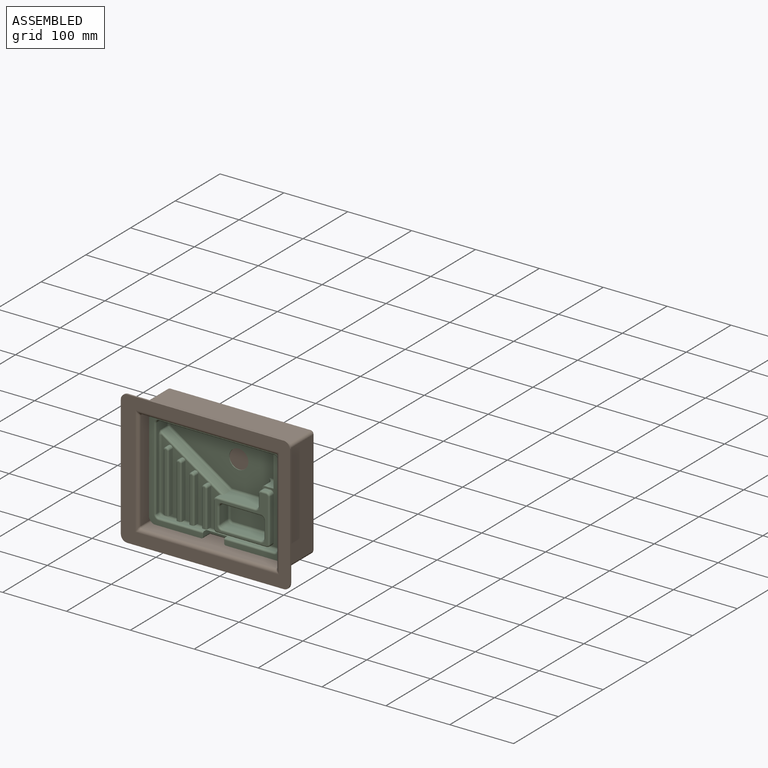
[diagram: assembled view]
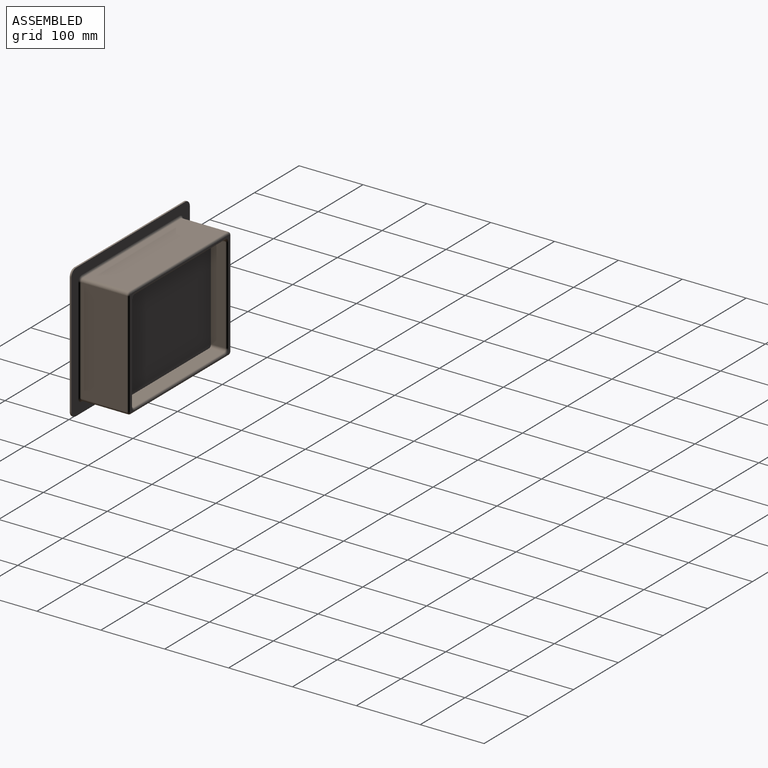
[diagram: assembled view, second angle]
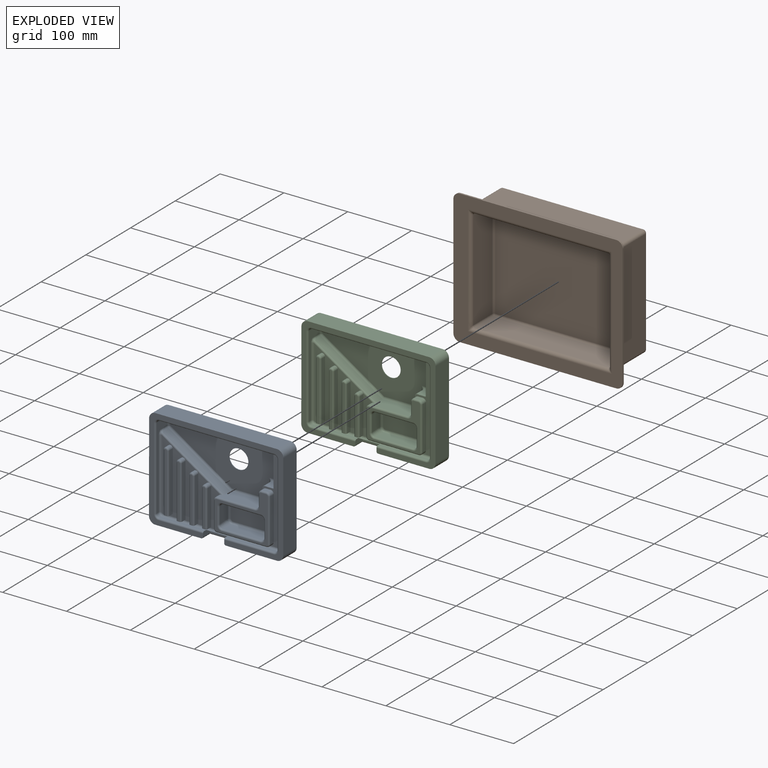
[diagram: exploded view]
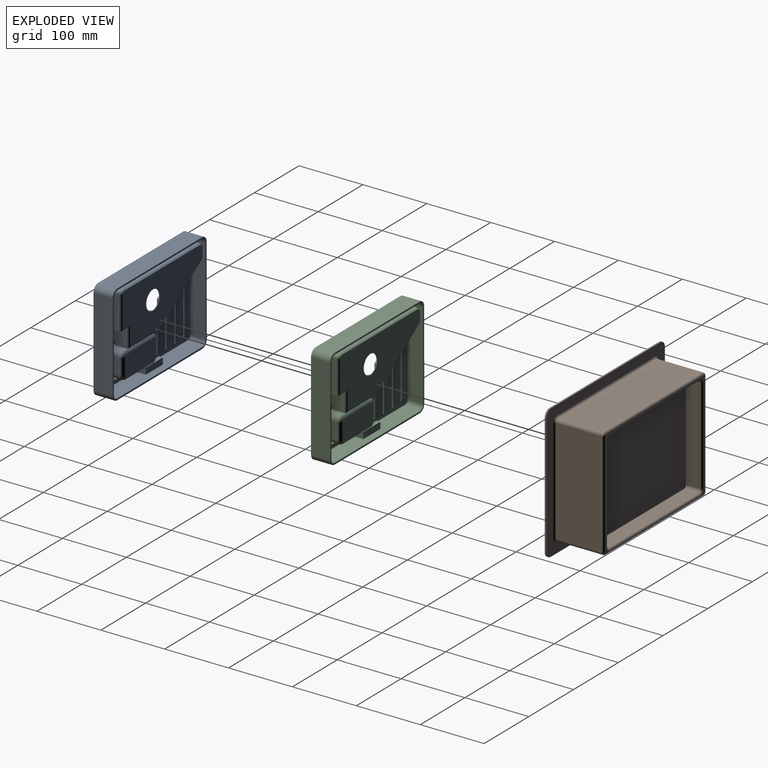
[diagram: exploded view, second angle]
ASSEMBLY  parts=3 mates=2
PART A: 250 faces, bbox 212.7x34x160.5 mm
  f0: plane 210.21x158mm, normal (0,1,0), area 1778mm2, adj f2,f58,f59,f60,f61,f62,f63,f64
  f1: plane 77.46x4.5mm, normal (0,0,1), area 348.6mm2, adj f4,f18,f136,f145
  f2: plane 190.21x30mm, normal (0,0,-1), area 4986.2mm2, adj f0,f3,f58,f64,f148,f149,f150
  f3: plane 210.21x158mm, normal (0,-1,0), area 5021.4mm2, adj f2,f4,f58,f59,f60,f61,f62,f63
  f4: cylinder r=2.5mm len=77.46mm, axis (-1,0,0), area 304.2mm2, adj f1,f3,f103,f145
  f5: plane 171.72x77.81mm, normal (0,-1,0), area 9085.8mm2, adj f122,f123,f124,f125,f126,f127,f128,f129
  f6: plane 82.45x72.77mm, normal (0,-1,0), area 1054.1mm2, adj f77,f78,f79,f80,f81,f82,f83,f84
  f7: cone r=5mm half-angle=3deg, axis (0,1,0), area 170.5mm2, adj f8,f14,f73,f80
  f8: plane 60.19x19.21mm, normal (0,0.05,1), area 1157.9mm2, adj f7,f9,f71,f82
  f9: cone r=5mm half-angle=3deg, axis (0,1,0), area 170.5mm2, adj f8,f10,f69,f84
  f10: plane 25.24x19.21mm, normal (-1,0.05,0), area 485.7mm2, adj f9,f11,f70,f83
  f11: cone r=5mm half-angle=3deg, axis (0,1,0), area 170.5mm2, adj f10,f12,f72,f81
  f12: plane 60.19x19.21mm, normal (0,0.05,-1), area 1157.9mm2, adj f11,f13,f74,f79
  f13: cone r=5mm half-angle=3deg, axis (0,1,0), area 170.5mm2, adj f12,f14,f76,f77
  f14: plane 25.24x19.21mm, normal (1,0.05,0), area 485.7mm2, adj f7,f13,f75,f78
  f15: plane 66.49x31.54mm, normal (0,-1,0), area 2088.6mm2, adj f69,f70,f71,f72,f73,f74,f75,f76
  f16: cylinder r=5mm len=5mm, axis (0,-1,0), area 35.3mm2, adj f17,f51,f99,f137
  f17: plane 69.33x4.5mm, normal (0,0,1), area 312mm2, adj f16,f101,f136,f146
  f18: cylinder r=5mm len=5mm, axis (0,-1,0), area 35.3mm2, adj f1,f19,f103,f135
  f19: plane 128x4.5mm, normal (-1,0,0), area 576mm2, adj f18,f20,f104,f134
  f20: cylinder r=5mm len=5mm, axis (0,-1,0), area 35.3mm2, adj f19,f21,f102,f133
  f21: plane 180.01x23.5mm, normal (0,0,-1), area 4034.8mm2, adj f20,f22,f100,f127,f131,f132
  f22: cylinder r=5mm len=23.5mm, axis (0,-1,0), area 184.6mm2, adj f21,f51,f98,f129
  f23: cylinder r=4mm len=8mm, axis (0,-1,0), area 94.2mm2, adj f24,f46,f52,f106
  f24: plane 92.55x7.5mm, normal (1,0,0), area 694.1mm2, adj f23,f25,f52,f105
  f25: plane 10x8mm, normal (0,0,-1), area 77.3mm2, adj f24,f46,f52,f56,f105,f107
  f26: cylinder r=4mm len=8mm, axis (0,-1,0), area 94.2mm2, adj f27,f47,f52,f109
  f27: plane 82.87x7.5mm, normal (1,0,0), area 621.5mm2, adj f26,f28,f52,f108
  f28: plane 10x8mm, normal (0,0,-1), area 77.3mm2, adj f27,f47,f52,f55,f108,f110
  f29: cylinder r=4mm len=8mm, axis (0,-1,0), area 94.2mm2, adj f30,f48,f52,f112,f120
  f30: plane 70.11x7.5mm, normal (1,0,0), area 525.8mm2, adj f29,f31,f52,f111
  f31: plane 10x8mm, normal (0,0,-1), area 77.3mm2, adj f30,f48,f52,f54,f111,f113
  f32: cylinder r=4mm len=8mm, axis (0,-1,0), area 94.2mm2, adj f33,f49,f52,f115,f118
  f33: plane 57.98x7.5mm, normal (1,0,0), area 434.8mm2, adj f32,f34,f52,f114
  f34: plane 10x8mm, normal (0,0,-1), area 77.3mm2, adj f33,f49,f52,f53,f114,f116
  f35: cylinder r=5mm len=7.5mm, axis (0,-1,0), area 58.9mm2, adj f36,f50,f52,f93
  f36: plane 67.77x7.5mm, normal (1,0,0), area 508.2mm2, adj f35,f37,f52,f95
  f37: cylinder r=5mm len=7.5mm, axis (0,-1,0), area 58.9mm2, adj f36,f38,f52,f96
  f38: plane 77.45x7.5mm, normal (0,0,-1), area 580.8mm2, adj f37,f39,f52,f94
  f39: cylinder r=5mm len=7.5mm, axis (0,-1,0), area 58.9mm2, adj f38,f40,f52,f92
  f40: plane 40x7.5mm, normal (-1,0,0), area 300mm2, adj f39,f41,f52,f90
  f41: cylinder r=5mm len=7.66mm, axis (0,-1,0), area 59mm2, adj f40,f42,f52,f88,f117
  f42: plane 66.13x24.63mm, normal (0,0,1), area 1444.7mm2, adj f41,f43,f44,f65,f66,f86,f117,f122
  f43: cylinder r=5mm len=7.5mm, axis (0,-1,0), area 58.9mm2, adj f42,f44,f65,f85
  f44: plane 27.64x23.5mm, normal (-1,0,0), area 575.5mm2, adj f42,f43,f45,f52,f65,f87,f124,f142
  f45: cylinder r=5mm len=7.5mm, axis (0,-1,0), area 58.9mm2, adj f44,f50,f52,f89
  f46: plane 92.55x7.5mm, normal (-1,0,0), area 694.1mm2, adj f23,f25,f52,f107
  f47: plane 82.87x7.5mm, normal (-1,0,0), area 621.5mm2, adj f26,f28,f52,f110
  f48: plane 70.11x7.5mm, normal (-1,0,0), area 525.8mm2, adj f29,f31,f52,f113
  f49: plane 57.98x7.5mm, normal (-1,0,0), area 434.8mm2, adj f32,f34,f52,f116
  f50: plane 7.5x7.45mm, normal (0,0,1), area 55.8mm2, adj f35,f45,f52,f91
  f51: plane 128x23.5mm, normal (1,0,0), area 825.4mm2, adj f16,f22,f97,f125,f138,f139,f140
  f52: plane 184.01x132mm, normal (0,-1,0), area 6043.6mm2, adj f23,f24,f25,f26,f27,f28,f29,f30
  f53: plane 59.48x3mm, normal (0,-1,0), area 177.5mm2, adj f34,f114,f115,f116
  f54: plane 71.61x3mm, normal (0,-1,0), area 213.9mm2, adj f31,f111,f112,f113
  f55: plane 84.37x3mm, normal (0,-1,0), area 252.2mm2, adj f28,f108,f109,f110
  f56: plane 94.05x3mm, normal (0,-1,0), area 281.2mm2, adj f25,f105,f106,f107
  f57: plane 181.79x87.87mm, normal (0,1,0), area 10847.2mm2, adj f151,f152,f153,f154,f155,f156,f157,f158
  f58: cylinder r=10mm len=30mm, axis (0,-1,0), area 471.7mm2, adj f0,f2,f3,f59
  f59: plane 138x30mm, normal (-1,0,0), area 4140mm2, adj f0,f3,f58,f60
  f60: cylinder r=10mm len=30mm, axis (0,-1,0), area 470.8mm2, adj f0,f3,f59,f61
  f61: plane 190.01x30mm, normal (0,0,1), area 5700.4mm2, adj f0,f3,f60,f62
  f62: cylinder r=10mm len=30mm, axis (0,-1,0), area 471.2mm2, adj f0,f3,f61,f63
  f63: plane 138x30mm, normal (1,0,0), area 4140mm2, adj f0,f3,f62,f64
  f64: cylinder r=10mm len=30mm, axis (0,-1,0), area 471.2mm2, adj f0,f2,f3,f63
  f65: plane 5x5mm, normal (0,1,0), area 5.4mm2, adj f42,f43,f44
  f66: plane 97.22x63.58mm, normal (0.55,0,0.84), area 1568.5mm2, adj f42,f117,f118,f119,f120,f121,f123,f140
  f67: plane 16x14.13mm, normal (0,0,1), area 226mm2, adj f52,f68,f126,f142
  f68: plane 50.17x16mm, normal (-1,0,0), area 802.7mm2, adj f52,f67,f128,f131
  f69: torus R=3.15mm, axis (0,-1,0), area 39mm2, adj f9,f15,f70,f71
  f70: cylinder r=3mm len=25.24mm, axis (0,0,-1), area 122.9mm2, adj f10,f15,f69,f72
  f71: cylinder r=3mm len=60.19mm, axis (1,0,0), area 293.1mm2, adj f8,f15,f69,f73
  f72: torus R=3.15mm, axis (0,-1,0), area 39mm2, adj f11,f15,f70,f74
  f73: torus R=3.15mm, axis (0,-1,0), area 39mm2, adj f7,f15,f71,f75
  f74: cylinder r=3mm len=60.19mm, axis (1,0,0), area 293.1mm2, adj f12,f15,f72,f76
  f75: cylinder r=3mm len=25.24mm, axis (0,0,-1), area 122.9mm2, adj f14,f15,f73,f76
  f76: torus R=3.15mm, axis (0,-1,0), area 39mm2, adj f13,f15,f74,f75
  f77: torus R=7.63mm, axis (0,-1,0), area 38.3mm2, adj f6,f13,f78,f79
  f78: cylinder r=2.5mm len=25.24mm, axis (0,0,1), area 102.4mm2, adj f6,f14,f77,f80
  f79: cylinder r=2.5mm len=60.19mm, axis (-1,0,0), area 244.2mm2, adj f6,f12,f77,f81
  f80: torus R=7.63mm, axis (0,-1,0), area 38.3mm2, adj f6,f7,f78,f82
  f81: torus R=7.63mm, axis (0,-1,0), area 38.3mm2, adj f6,f11,f79,f83
  f82: cylinder r=2.5mm len=60.19mm, axis (-1,0,0), area 244.2mm2, adj f6,f8,f80,f84
  f83: cylinder r=2.5mm len=25.24mm, axis (0,0,1), area 102.4mm2, adj f6,f10,f81,f84
  f84: torus R=7.63mm, axis (0,-1,0), area 38.3mm2, adj f6,f9,f82,f83
  f85: torus R=7.5mm, axis (0,-1,0), area 36.4mm2, adj f6,f43,f86,f87
  f86: cylinder r=2.5mm len=60mm, axis (-1,0,0), area 235.6mm2, adj f6,f42,f85,f88
  f87: cylinder r=2.5mm len=17.77mm, axis (0,0,-1), area 69.8mm2, adj f6,f44,f85,f89
  f88: torus R=2.5mm, axis (0,-1,0), area 25.2mm2, adj f6,f41,f86,f90
  f89: torus R=2.5mm, axis (0,-1,0), area 25.2mm2, adj f6,f45,f87,f91
  f90: cylinder r=2.5mm len=40mm, axis (0,0,-1), area 157.1mm2, adj f6,f40,f88,f92
  f91: cylinder r=2.5mm len=7.45mm, axis (-1,0,0), area 29.2mm2, adj f6,f50,f89,f93
  f92: torus R=2.5mm, axis (0,-1,0), area 25.2mm2, adj f6,f39,f90,f94
  f93: torus R=2.5mm, axis (0,-1,0), area 25.2mm2, adj f6,f35,f91,f95
  f94: cylinder r=2.5mm len=77.45mm, axis (1,0,0), area 304.1mm2, adj f6,f38,f92,f96
  f95: cylinder r=2.5mm len=67.77mm, axis (0,0,1), area 266.1mm2, adj f6,f36,f93,f96
  f96: torus R=2.5mm, axis (0,-1,0), area 25.2mm2, adj f6,f37,f94,f95
  f97: cylinder r=2.5mm len=128mm, axis (0,0,1), area 502.7mm2, adj f3,f51,f98,f99
  f98: torus R=7.5mm, axis (0,-1,0), area 36.4mm2, adj f3,f22,f97,f100
  f99: torus R=7.5mm, axis (0,-1,0), area 36.4mm2, adj f3,f16,f97,f101
  f100: cylinder r=2.5mm len=180.01mm, axis (1,0,0), area 706.9mm2, adj f3,f21,f98,f102
  f101: cylinder r=2.5mm len=69.33mm, axis (-1,0,0), area 272.3mm2, adj f3,f17,f99,f146
  f102: torus R=7.5mm, axis (0,-1,0), area 36.4mm2, adj f3,f20,f100,f104
  f103: torus R=7.5mm, axis (0,-1,0), area 36.4mm2, adj f3,f4,f18,f104
  f104: cylinder r=2.5mm len=128mm, axis (0,0,-1), area 502.7mm2, adj f3,f19,f102,f103
  f105: cylinder r=2.5mm len=92.55mm, axis (0,0,1), area 363.5mm2, adj f24,f25,f56,f106
  f106: torus R=1.5mm, axis (0,-1,0), area 38.1mm2, adj f23,f56,f105,f107
  f107: cylinder r=2.5mm len=92.55mm, axis (0,0,-1), area 363.5mm2, adj f25,f46,f56,f106
  f108: cylinder r=2.5mm len=82.87mm, axis (0,0,1), area 325.4mm2, adj f27,f28,f55,f109
  f109: torus R=1.5mm, axis (0,-1,0), area 38.1mm2, adj f26,f55,f108,f110
  f110: cylinder r=2.5mm len=82.87mm, axis (0,0,-1), area 325.4mm2, adj f28,f47,f55,f109
  f111: cylinder r=2.5mm len=70.11mm, axis (0,0,1), area 275.3mm2, adj f30,f31,f54,f112
  f112: torus R=1.5mm, axis (0,-1,0), area 38.1mm2, adj f29,f54,f111,f113
  f113: cylinder r=2.5mm len=70.11mm, axis (0,0,-1), area 275.3mm2, adj f31,f48,f54,f112
  f114: cylinder r=2.5mm len=57.98mm, axis (0,0,1), area 227.7mm2, adj f33,f34,f53,f115
  f115: torus R=1.5mm, axis (0,-1,0), area 38.1mm2, adj f32,f53,f114,f116
  f116: cylinder r=2.5mm len=57.98mm, axis (0,0,-1), area 227.7mm2, adj f34,f49,f53,f115
  f117: cylinder r=2.5mm len=18.8mm, axis (-0.84,0,0.55), area 75.4mm2, adj f41,f42,f52,f66,f118
  f118: bspline ~5.43x4.75mm, area 16.3mm2, adj f32,f66,f117,f119
  f119: cylinder r=2.5mm len=18.53mm, axis (-0.84,0,0.55), area 80.5mm2, adj f52,f66,f118,f120
  f120: bspline ~3.03x2.76mm, area 3.4mm2, adj f29,f66,f119,f121
  f121: cylinder r=2.5mm len=59.19mm, axis (-0.84,0,0.55), area 264.2mm2, adj f52,f66,f120,f139
  f122: cylinder r=3mm len=62.02mm, axis (1,0,0), area 283.1mm2, adj f5,f42,f123,f124
  f123: cylinder r=3mm len=98.86mm, axis (0.84,0,-0.55), area 545.3mm2, adj f5,f66,f122,f141
  f124: cylinder r=3mm len=33.64mm, axis (0,0,-1), area 137.3mm2, adj f5,f44,f122,f143
  f125: cylinder r=3mm len=12.72mm, axis (0,0,1), area 59.9mm2, adj f5,f51,f129,f141
  f126: cylinder r=3mm len=20.13mm, axis (1,0,0), area 73.6mm2, adj f5,f67,f128,f143
  f127: cylinder r=3mm len=169.72mm, axis (1,0,0), area 799.8mm2, adj f5,f21,f129,f130
  f128: cylinder r=3mm len=50.17mm, axis (0,0,1), area 229.3mm2, adj f5,f68,f126,f130
  f129: torus R=2mm, axis (0,-1,0), area 28.9mm2, adj f5,f22,f125,f127
  f130: sphere r=3mm, area 9mm2, adj f127,f128,f131
  f131: cylinder r=3mm len=19mm, axis (0,-1,0), area 82.5mm2, adj f21,f68,f130,f132
  f132: cylinder r=3mm len=10.29mm, axis (-1,0,0), area 41.4mm2, adj f21,f52,f131,f133
  f133: torus R=2mm, axis (0,-1,0), area 28.9mm2, adj f20,f52,f132,f134
  f134: cylinder r=3mm len=128mm, axis (0,0,1), area 603.2mm2, adj f19,f52,f133,f135
  f135: torus R=2mm, axis (0,-1,0), area 28.9mm2, adj f18,f52,f134,f136
  f136: cylinder r=3mm len=180.01mm, axis (1,0,0), area 848.3mm2, adj f1,f17,f52,f135,f137,f144
  f137: torus R=2mm, axis (0,-1,0), area 28.9mm2, adj f16,f52,f136,f138
  f138: cylinder r=3mm len=108.71mm, axis (0,0,-1), area 512.3mm2, adj f51,f52,f137,f139
  f139: bspline ~6.57x5.5mm, area 25.9mm2, adj f51,f121,f138,f140
  f140: cylinder r=3mm len=13.5mm, axis (0,1,0), area 40.2mm2, adj f51,f66,f139,f141
  f141: sphere r=3mm, area 6.5mm2, adj f123,f125,f140
  f142: cylinder r=3mm len=16mm, axis (0,1,0), area 75.4mm2, adj f44,f52,f67,f143
  f143: bspline ~6x6mm, area 9.5mm2, adj f124,f126,f142
  f144: plane 33.22x9.34mm, normal (0,0,-1), area 310.3mm2, adj f136,f145,f146,f147
  f145: plane 16.34x7.5mm, normal (-1,0,0), area 121.2mm2, adj f1,f3,f4,f144,f147,f148
  f146: plane 16.34x7.5mm, normal (1,0,0), area 121.2mm2, adj f3,f17,f101,f144,f147,f150
  f147: plane 33.22x7.5mm, normal (0,-1,0), area 249.2mm2, adj f144,f145,f146,f149
  f148: cylinder r=2.5mm len=18.84mm, axis (0,-1,0), area 69.1mm2, adj f2,f3,f145,f149
  f149: cylinder r=2.5mm len=38.22mm, axis (1,0,0), area 140.3mm2, adj f2,f147,f148,f150
  f150: cylinder r=2.5mm len=18.84mm, axis (0,1,0), area 69.1mm2, adj f2,f3,f146,f149
  f151: cylinder r=15mm len=30mm, axis (0,1,0), area 94.2mm2, adj f5,f57
  f152: sphere r=5.5mm, area 39.3mm2, adj f57,f155,f156,f236
  f153: bspline ~4.55x2.65mm, area 3.3mm2, adj f57,f157,f158,f245
  f154: sphere r=5.5mm, area 21.1mm2, adj f57,f160,f161,f244
  f155: cylinder r=5.5mm len=169.72mm, axis (1,0,0), area 760.2mm2, adj f57,f152,f162,f181
  f156: cylinder r=5.5mm len=52.67mm, axis (0,0,1), area 232mm2, adj f57,f152,f157,f227
  f157: cylinder r=5.5mm len=18.51mm, axis (1,0,0), area 74.8mm2, adj f57,f153,f156,f226
  f158: cylinder r=5.5mm len=32.02mm, axis (0,0,-1), area 135.3mm2, adj f57,f153,f159,f204
  f159: cylinder r=5.5mm len=65.27mm, axis (1,0,0), area 287.3mm2, adj f57,f158,f160,f202
  f160: cylinder r=5.5mm len=98.78mm, axis (0.84,0,-0.55), area 522.5mm2, adj f57,f154,f159,f225
  f161: cylinder r=5.5mm len=12.72mm, axis (0,0,1), area 57mm2, adj f57,f154,f162,f211
  f162: torus R=2mm, axis (0,-1,0), area 48.6mm2, adj f57,f155,f161,f182
  f163: plane 74.96x4.5mm, normal (0,0,-1), area 337.3mm2, adj f165,f178,f241,f247
  f164: plane 190.21x27.5mm, normal (0,0,1), area 4606.2mm2, adj f0,f165,f217,f223,f247,f248,f249
  f165: plane 205.21x153mm, normal (0,1,0), area 3304.1mm2, adj f163,f164,f176,f177,f178,f179,f180,f181
  f166: plane 82.45x72.77mm, normal (0,1,0), area 1054.1mm2, adj f167,f168,f169,f170,f171,f172,f173,f174
  f167: cone r=7.5mm half-angle=3deg, axis (0,1,0), area 245.9mm2, adj f166,f168,f174,f232
  f168: plane 60.19x19.21mm, normal (0,-0.05,-1), area 1157.9mm2, adj f166,f167,f169,f230
  f169: cone r=7.5mm half-angle=3deg, axis (0,1,0), area 245.9mm2, adj f166,f168,f170,f228
  f170: plane 25.24x19.21mm, normal (1,-0.05,0), area 485.7mm2, adj f166,f169,f171,f229
  f171: cone r=7.5mm half-angle=3deg, axis (0,1,0), area 245.9mm2, adj f166,f170,f172,f231
  f172: plane 60.19x19.21mm, normal (0,-0.05,1), area 1157.9mm2, adj f166,f171,f173,f233
  f173: cone r=7.5mm half-angle=3deg, axis (0,1,0), area 245.9mm2, adj f166,f172,f174,f235
  f174: plane 25.24x19.21mm, normal (-1,-0.05,0), area 485.7mm2, adj f166,f167,f173,f234
  f175: plane 66.49x31.54mm, normal (0,1,0), area 2088.6mm2, adj f228,f229,f230,f231,f232,f233,f234,f235
  f176: cylinder r=7.5mm len=7.5mm, axis (0,-1,0), area 53mm2, adj f165,f177,f211,f242
  f177: plane 66.83x4.5mm, normal (0,0,-1), area 300.8mm2, adj f165,f176,f241,f248
  f178: cylinder r=7.5mm len=7.5mm, axis (0,-1,0), area 53mm2, adj f163,f165,f179,f240
  f179: plane 128x4.5mm, normal (1,0,0), area 576mm2, adj f165,f178,f180,f239
  f180: cylinder r=7.5mm len=7.5mm, axis (0,-1,0), area 53mm2, adj f165,f179,f181,f238
  f181: plane 180.01x23.5mm, normal (0,0,1), area 4034.8mm2, adj f155,f165,f180,f182,f236,f237
  f182: cylinder r=7.5mm len=23.5mm, axis (0,-1,0), area 276.9mm2, adj f162,f165,f181,f211
  f183: cylinder r=1.5mm len=10mm, axis (0,-1,0), area 47.1mm2, adj f184,f206,f212,f216
  f184: plane 90.05x10mm, normal (-1,0,0), area 900.5mm2, adj f183,f185,f212,f216
  f185: plane 10x3mm, normal (0,0,1), area 30mm2, adj f184,f206,f212,f216
  f186: cylinder r=1.5mm len=10mm, axis (0,-1,0), area 47.1mm2, adj f187,f207,f212,f215
  f187: plane 80.37x10mm, normal (-1,0,0), area 803.7mm2, adj f186,f188,f212,f215
  f188: plane 10x3mm, normal (0,0,1), area 30mm2, adj f187,f207,f212,f215
  f189: cylinder r=1.5mm len=10mm, axis (0,-1,0), area 47.1mm2, adj f190,f208,f212,f214
  f190: plane 67.61x10mm, normal (-1,0,0), area 676.1mm2, adj f189,f191,f212,f214
  f191: plane 10x3mm, normal (0,0,1), area 30mm2, adj f190,f208,f212,f214
  f192: cylinder r=1.5mm len=10mm, axis (0,-1,0), area 47.1mm2, adj f193,f209,f212,f213
  f193: plane 55.48x10mm, normal (-1,0,0), area 554.8mm2, adj f192,f194,f212,f213
  f194: plane 10x3mm, normal (0,0,1), area 30mm2, adj f193,f209,f212,f213
  f195: cylinder r=2.5mm len=10mm, axis (0,-1,0), area 39.3mm2, adj f166,f196,f210,f212
  f196: plane 67.77x10mm, normal (-1,0,0), area 677.7mm2, adj f166,f195,f197,f212
  f197: cylinder r=2.5mm len=10mm, axis (0,-1,0), area 39.3mm2, adj f166,f196,f198,f212
  f198: plane 77.45x10mm, normal (0,0,1), area 774.5mm2, adj f166,f197,f199,f212
  f199: cylinder r=2.5mm len=10mm, axis (0,-1,0), area 39.3mm2, adj f166,f198,f200,f212
  f200: plane 40x10mm, normal (1,0,0), area 400mm2, adj f166,f199,f201,f212
  f201: cylinder r=2.5mm len=10mm, axis (0,-1,0), area 39.3mm2, adj f166,f200,f202,f212
  f202: plane 67.5x23.5mm, normal (0,0,-1), area 1518.6mm2, adj f159,f166,f201,f203,f204,f212,f224,f225
  f203: cylinder r=7.5mm len=7.5mm, axis (0,-1,0), area 58.9mm2, adj f166,f202,f204,f224
  f204: plane 30.14x23.5mm, normal (1,0,0), area 622mm2, adj f158,f166,f202,f203,f205,f212,f224,f245
  f205: cylinder r=2.5mm len=10mm, axis (0,-1,0), area 39.3mm2, adj f166,f204,f210,f212
  f206: plane 90.05x10mm, normal (1,0,0), area 900.5mm2, adj f183,f185,f212,f216
  f207: plane 80.37x10mm, normal (1,0,0), area 803.7mm2, adj f186,f188,f212,f215
  f208: plane 67.61x10mm, normal (1,0,0), area 676.1mm2, adj f189,f191,f212,f214
  f209: plane 55.48x10mm, normal (1,0,0), area 554.8mm2, adj f192,f194,f212,f213
  f210: plane 10x7.45mm, normal (0,0,-1), area 74.5mm2, adj f166,f195,f205,f212
  f211: plane 128x23.5mm, normal (-1,0,0), area 817.6mm2, adj f161,f165,f176,f182,f243,f244
  f212: plane 184.01x132mm, normal (0,1,0), area 8045mm2, adj f183,f184,f185,f186,f187,f188,f189,f190
  f213: plane 56.98x3mm, normal (0,1,0), area 170mm2, adj f192,f193,f194,f209
  f214: plane 69.11x3mm, normal (0,1,0), area 206.4mm2, adj f189,f190,f191,f208
  f215: plane 81.87x3mm, normal (0,1,0), area 244.7mm2, adj f186,f187,f188,f207
  f216: plane 91.55x3mm, normal (0,1,0), area 273.7mm2, adj f183,f184,f185,f206
  f217: cylinder r=7.5mm len=27.5mm, axis (0,-1,0), area 324.3mm2, adj f0,f164,f165,f218
  f218: plane 138x27.5mm, normal (1,0,0), area 3795mm2, adj f0,f165,f217,f219
  f219: cylinder r=7.5mm len=27.5mm, axis (0,-1,0), area 323.7mm2, adj f0,f165,f218,f220
  f220: plane 190.01x27.5mm, normal (0,0,-1), area 5225.4mm2, adj f0,f165,f219,f221
  f221: cylinder r=7.5mm len=27.5mm, axis (0,-1,0), area 324mm2, adj f0,f165,f220,f222
  f222: plane 138x27.5mm, normal (-1,0,0), area 3795mm2, adj f0,f165,f221,f223
  f223: cylinder r=7.5mm len=27.5mm, axis (0,-1,0), area 324mm2, adj f0,f164,f165,f222
  f224: plane 7.5x7.5mm, normal (0,-1,0), area 12.1mm2, adj f202,f203,f204
  f225: plane 97.93x64.07mm, normal (-0.55,0,-0.84), area 1579.3mm2, adj f160,f202,f212,f243,f244
  f226: plane 16.63x13.5mm, normal (0,0,-1), area 224.5mm2, adj f157,f212,f227,f245
  f227: plane 52.67x13.5mm, normal (1,0,0), area 711mm2, adj f156,f212,f226,f236
  f228: torus R=3.15mm, axis (0,-1,0), area 94.2mm2, adj f169,f175,f229,f230
  f229: cylinder r=5.5mm len=25.24mm, axis (0,0,-1), area 225.4mm2, adj f170,f175,f228,f231
  f230: cylinder r=5.5mm len=60.19mm, axis (1,0,0), area 537.3mm2, adj f168,f175,f228,f232
  f231: torus R=3.15mm, axis (0,-1,0), area 94.2mm2, adj f171,f175,f229,f233
  f232: torus R=3.15mm, axis (0,-1,0), area 94.2mm2, adj f167,f175,f230,f234
  f233: cylinder r=5.5mm len=60.19mm, axis (1,0,0), area 537.3mm2, adj f172,f175,f231,f235
  f234: cylinder r=5.5mm len=25.24mm, axis (0,0,-1), area 225.4mm2, adj f174,f175,f232,f235
  f235: torus R=3.15mm, axis (0,-1,0), area 94.2mm2, adj f173,f175,f233,f234
  f236: cylinder r=5.5mm len=19mm, axis (0,-1,0), area 140.4mm2, adj f152,f181,f227,f237
  f237: cylinder r=5.5mm len=10.29mm, axis (-1,0,0), area 65.1mm2, adj f181,f212,f236,f238
  f238: torus R=2mm, axis (0,-1,0), area 74.7mm2, adj f180,f212,f237,f239
  f239: cylinder r=5.5mm len=128mm, axis (0,0,1), area 1105.8mm2, adj f179,f212,f238,f240
  f240: torus R=2mm, axis (0,-1,0), area 74.7mm2, adj f178,f212,f239,f241
  f241: cylinder r=5.5mm len=180.01mm, axis (1,0,0), area 1244.1mm2, adj f163,f177,f212,f240,f242,f246,f247,f248
  f242: torus R=2mm, axis (0,-1,0), area 74.7mm2, adj f176,f212,f241,f243
  f243: cylinder r=5.5mm len=115.28mm, axis (0,0,-1), area 965.6mm2, adj f211,f212,f225,f242,f244
  f244: cylinder r=5.5mm len=19mm, axis (0,1,0), area 91.1mm2, adj f154,f211,f225,f243
  f245: cylinder r=0.5mm len=13.5mm, axis (0,1,0), area 10.6mm2, adj f153,f204,f212,f226
  f246: plane 38.22x6.36mm, normal (0,0,1), area 243.2mm2, adj f241,f247,f248,f249
  f247: plane 16.34x10mm, normal (1,0,0), area 119.9mm2, adj f163,f164,f165,f241,f246,f249
  f248: plane 16.34x10mm, normal (-1,0,0), area 119.9mm2, adj f164,f165,f177,f241,f246,f249
  f249: plane 38.22x10mm, normal (0,1,0), area 382.2mm2, adj f164,f246,f247,f248
PART B: 75 faces, bbox 265.2x210.2x80.2 mm
  f0: plane 223x168mm, normal (0,0,-1), area 1570.9mm2, adj f28,f29,f30,f31,f32,f33,f34,f35
  f1: cone r=5mm half-angle=2deg, axis (0,0,-1), area 156.8mm2, adj f2,f8,f9,f46
  f2: plane 201x22.1mm, normal (0,-1,-0.03), area 4445.8mm2, adj f1,f3,f9,f48
  f3: cone r=5mm half-angle=2deg, axis (0,0,-1), area 156.8mm2, adj f2,f4,f9,f50
  f4: plane 150x22.1mm, normal (-1,0,-0.03), area 3317.7mm2, adj f3,f5,f9,f51
  f5: cone r=5mm half-angle=2deg, axis (0,0,-1), area 156.8mm2, adj f4,f6,f9,f49
  f6: plane 201x22.1mm, normal (0,1,-0.03), area 4445.8mm2, adj f5,f7,f9,f47
  f7: cone r=5mm half-angle=2deg, axis (0,0,-1), area 156.8mm2, adj f6,f8,f9,f45
  f8: plane 150x22.1mm, normal (1,0,-0.03), area 3317.7mm2, adj f1,f7,f9,f44
  f9: plane 209.25x158.25mm, normal (0,0,-1), area 33100.6mm2, adj f1,f2,f3,f4,f5,f6,f7,f8
  f10: plane 219x71.5mm, normal (0,1,0), area 15658.5mm2, adj f11,f17,f28,f40
  f11: cylinder r=5mm len=71.5mm, axis (0,0,-1), area 561.6mm2, adj f10,f12,f29,f42
  f12: plane 164x71.5mm, normal (-1,0,0), area 11726mm2, adj f11,f13,f31,f43
  f13: cylinder r=5mm len=71.5mm, axis (0,0,-1), area 561.6mm2, adj f12,f14,f33,f41
  f14: plane 219x71.5mm, normal (0,-1,0), area 15658.5mm2, adj f13,f15,f35,f39
  f15: cylinder r=5mm len=71.5mm, axis (0,0,-1), area 561.6mm2, adj f14,f16,f34,f37
  f16: plane 164x71.5mm, normal (1,0,0), area 11726mm2, adj f15,f17,f32,f36
  f17: cylinder r=5mm len=71.5mm, axis (0,0,-1), area 561.6mm2, adj f10,f16,f30,f38
  f18: plane 265x210mm, normal (0,0,-1), area 13319.1mm2, adj f20,f21,f22,f23,f24,f25,f26,f27
  f19: plane 265x210mm, normal (0,0,1), area 16751.7mm2, adj f20,f21,f22,f23,f24,f25,f26,f27
  f20: plane 190x2.5mm, normal (-1,0,0), area 475mm2, adj f18,f19,f21,f27
  f21: cylinder r=10mm len=10mm, axis (0,0,-1), area 39.3mm2, adj f18,f19,f20,f22
  f22: plane 245x2.5mm, normal (0,1,0), area 612.5mm2, adj f18,f19,f21,f23
  f23: cylinder r=10mm len=10mm, axis (0,0,-1), area 39.3mm2, adj f18,f19,f22,f24
  f24: plane 190x2.5mm, normal (1,0,0), area 475mm2, adj f18,f19,f23,f25
  f25: cylinder r=10mm len=10mm, axis (0,0,-1), area 39.3mm2, adj f18,f19,f24,f26
  f26: plane 245x2.5mm, normal (0,-1,0), area 612.5mm2, adj f18,f19,f25,f27
  f27: cylinder r=10mm len=10mm, axis (0,0,-1), area 39.3mm2, adj f18,f19,f20,f26
  f28: cylinder r=3mm len=219mm, axis (-1,0,0), area 1032mm2, adj f0,f10,f29,f30
  f29: torus R=2mm, axis (0,0,1), area 28.9mm2, adj f0,f11,f28,f31
  f30: torus R=2mm, axis (0,0,1), area 28.9mm2, adj f0,f17,f28,f32
  f31: cylinder r=3mm len=164mm, axis (0,-1,0), area 772.8mm2, adj f0,f12,f29,f33
  f32: cylinder r=3mm len=164mm, axis (0,1,0), area 772.8mm2, adj f0,f16,f30,f34
  f33: torus R=2mm, axis (0,0,1), area 28.9mm2, adj f0,f13,f31,f35
  f34: torus R=2mm, axis (0,0,1), area 28.9mm2, adj f0,f15,f32,f35
  f35: cylinder r=3mm len=219mm, axis (1,0,0), area 1032mm2, adj f0,f14,f33,f34
  f36: cylinder r=3mm len=164mm, axis (0,1,0), area 772.8mm2, adj f16,f18,f37,f38
  f37: torus R=8mm, axis (0,0,-1), area 45.1mm2, adj f15,f18,f36,f39
  f38: torus R=8mm, axis (0,0,-1), area 45.1mm2, adj f17,f18,f36,f40
  f39: cylinder r=3mm len=219mm, axis (1,0,0), area 1032mm2, adj f14,f18,f37,f41
  f40: cylinder r=3mm len=219mm, axis (-1,0,0), area 1032mm2, adj f10,f18,f38,f42
  f41: torus R=8mm, axis (0,0,-1), area 45.1mm2, adj f13,f18,f39,f43
  f42: torus R=8mm, axis (0,0,-1), area 45.1mm2, adj f11,f18,f40,f43
  f43: cylinder r=3mm len=164mm, axis (0,-1,0), area 772.8mm2, adj f12,f18,f41,f42
  f44: cylinder r=3mm len=150mm, axis (0,1,0), area 691.2mm2, adj f0,f8,f45,f46
  f45: torus R=7.9mm, axis (0,0,1), area 43.5mm2, adj f0,f7,f44,f47
  f46: torus R=7.9mm, axis (0,0,1), area 43.5mm2, adj f0,f1,f44,f48
  f47: cylinder r=3mm len=201mm, axis (1,0,0), area 926.1mm2, adj f0,f6,f45,f49
  f48: cylinder r=3mm len=201mm, axis (1,0,0), area 926.1mm2, adj f0,f2,f46,f50
  f49: torus R=7.9mm, axis (0,0,1), area 43.5mm2, adj f0,f5,f47,f51
  f50: torus R=7.9mm, axis (0,0,1), area 43.5mm2, adj f0,f3,f48,f51
  f51: cylinder r=3mm len=150mm, axis (0,1,0), area 691.2mm2, adj f0,f4,f49,f50
  f52: plane 156.5x42mm, normal (-1,0,0), area 6573mm2, adj f59,f66,f70,f72
  f53: plane 212.21x42.21mm, normal (0,-1,0), area 8899.8mm2, adj f54,f60,f65,f66,f74
  f54: plane 159.71x42.21mm, normal (1,0,0), area 6694.8mm2, adj f53,f58,f63,f64,f74
  f55: plane 209x42mm, normal (0,1,0), area 8778mm2, adj f57,f63,f69,f72
  f56: plane 209x156.5mm, normal (0,0,1), area 32708.5mm2, adj f64,f65,f69,f70
  f57: cylinder r=5mm len=225mm, axis (-1,0,0), area 1704.3mm2, adj f19,f55,f61,f73
  f58: cylinder r=5mm len=172.5mm, axis (0,1,0), area 1292mm2, adj f19,f54,f61,f74
  f59: cylinder r=5mm len=172.5mm, axis (0,-1,0), area 1292mm2, adj f19,f52,f62,f73
  f60: cylinder r=5mm len=225mm, axis (1,0,0), area 1704.3mm2, adj f19,f53,f62,f74
  f61: bspline ~8x8mm, area 15.9mm2, adj f57,f58,f63
  f62: bspline ~8x8mm, area 15.9mm2, adj f59,f60,f66
  f63: cylinder r=3mm len=42mm, axis (0,0,-1), area 197.9mm2, adj f54,f55,f61,f67
  f64: cylinder r=3mm len=159.5mm, axis (0,-1,0), area 744.6mm2, adj f54,f56,f65,f67
  f65: cylinder r=3mm len=212mm, axis (-1,0,0), area 992mm2, adj f53,f56,f64,f68
  f66: cylinder r=3mm len=42mm, axis (0,0,-1), area 197.9mm2, adj f52,f53,f62,f68
  f67: sphere r=3mm, area 14.1mm2, adj f63,f64,f69
  f68: sphere r=3mm, area 9mm2, adj f65,f66,f70
  f69: cylinder r=3mm len=209mm, axis (1,0,0), area 984.9mm2, adj f55,f56,f67,f71
  f70: cylinder r=3mm len=156.5mm, axis (0,1,0), area 737.5mm2, adj f52,f56,f68,f71
  f71: sphere r=3mm, area 14.1mm2, adj f69,f70,f72
  f72: cylinder r=3mm len=42mm, axis (0,0,1), area 197.9mm2, adj f52,f55,f71,f73
  f73: bspline ~8x8mm, area 15.9mm2, adj f57,f59,f72
  f74: bspline ~8.3x8mm, area 22.3mm2, adj f53,f54,f58,f60
PART C: same geometry as A
PLACE A t=(22.3,55.54,-69.94)mm
PLACE B rot(axis=(1,0,0),90deg) t=(75.04,85.54,-151.89)mm
PLACE C t=(22.3,55.54,-69.94)mm
MATE fastened B.f56 <-> A.f57  axis (0,-1,0) through (76.4,55.54,-112.3)mm
MATE fastened A.f57 <-> C.f57  axis (0,-1,0) through (76.4,55.54,-112.3)mm
